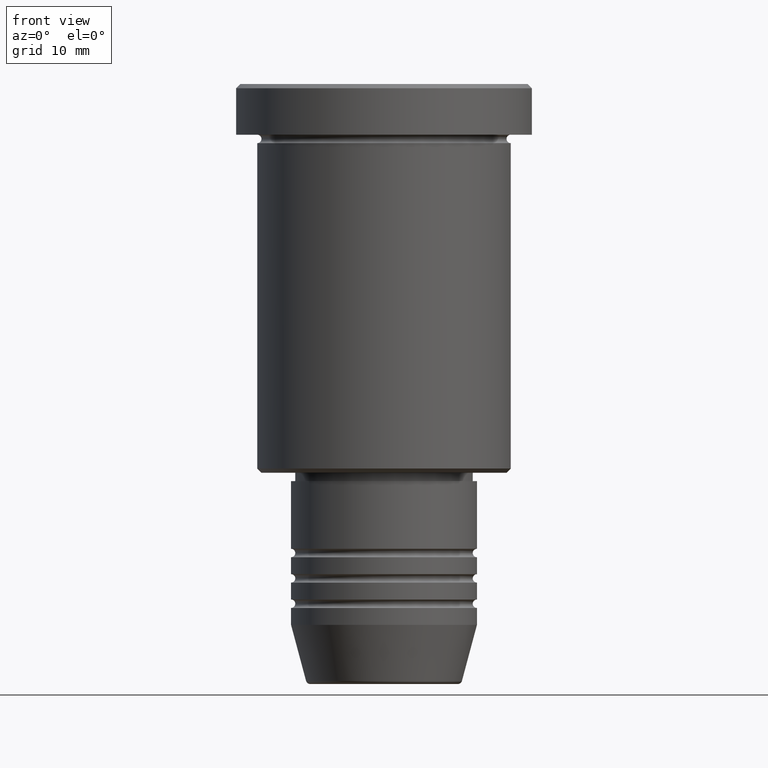
[diagram: clean part render]
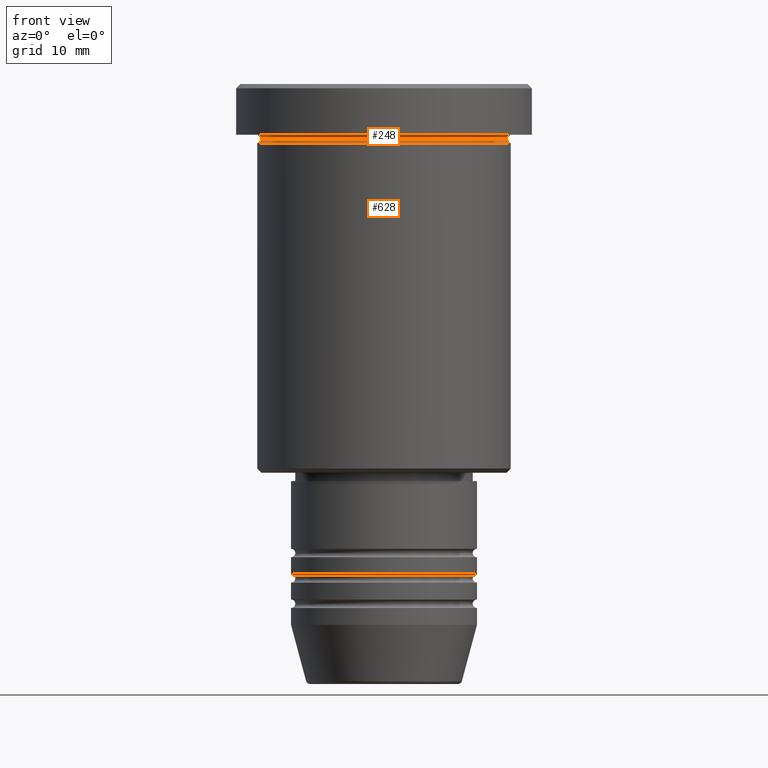
[diagram: same view with one multi-face feature highlighted, each face labeled with its STEP entity id]
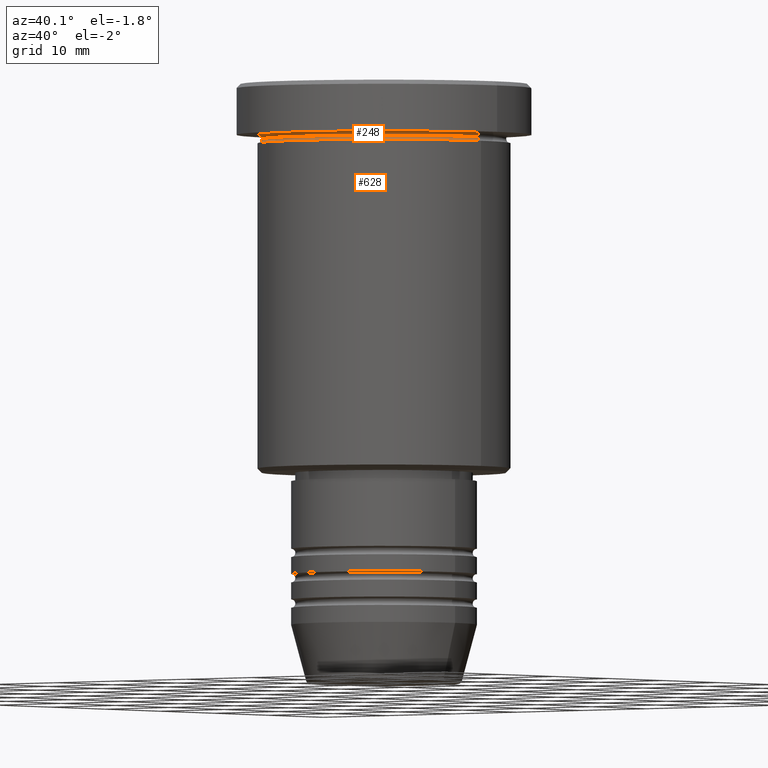
[diagram: same view with one multi-face feature highlighted, each face labeled with its STEP entity id]
A machine part, front view. The highlighted faces form ONE feature: a constant-radius fillet chain: 2 tangent blend faces with common blend radius 0.5 mm. The faces share edges in the B-rep.
A second angle (auxiliary view) of the same feature is appended — it is thin or edge-on in the first view.
Their STEP definitions:
[1] entity #628 (Torus):
#4 = AXIS2_PLACEMENT_3D ( 'NONE', #59, #409, #506 ) ;
#6 = DIRECTION ( 'NONE',  ( 1.000000000000000000, 0.000000000000000000, 0.000000000000000000 ) ) ;
#8 = TOROIDAL_SURFACE ( 'NONE', #548, 15.00000000000000000, 0.5000000000000000000 ) ;
#14 = FACE_OUTER_BOUND ( 'NONE', #1161, .T. ) ;
#59 = CARTESIAN_POINT ( 'NONE',  ( 0.000000000000000000, 0.000000000000000000, -6.999999999999995559 ) ) ;
#115 = CARTESIAN_POINT ( 'NONE',  ( -15.00000000000000000, 1.836970198721029589E-15, -6.999999999999995559 ) ) ;
#140 = DIRECTION ( 'NONE',  ( 1.000000000000000000, 0.000000000000000000, 0.000000000000000000 ) ) ;
#208 = VERTEX_POINT ( 'NONE', #115 ) ;
#250 = DIRECTION ( 'NONE',  ( 0.000000000000000000, 0.000000000000000000, -1.000000000000000000 ) ) ;
#257 = CARTESIAN_POINT ( 'NONE',  ( 15.00000000000000000, 0.000000000000000000, -6.499999999999995559 ) ) ;
#273 = CIRCLE ( 'NONE', #4, 15.00000000000000000 ) ;
#299 = VERTEX_POINT ( 'NONE', #317 ) ;
#312 = EDGE_CURVE ( 'NONE', #851, #208, #505, .T. ) ;
#317 = CARTESIAN_POINT ( 'NONE',  ( 14.49999999999999822, 0.000000000000000000, -6.499999999999995559 ) ) ;
#323 = DIRECTION ( 'NONE',  ( -1.000000000000000000, 1.224646799147349509E-16, 0.000000000000000000 ) ) ;
#363 = EDGE_CURVE ( 'NONE', #208, #890, #273, .T. ) ;
#409 = DIRECTION ( 'NONE',  ( -0.000000000000000000, -0.000000000000000000, 1.000000000000000000 ) ) ;
#414 = ORIENTED_EDGE ( 'NONE', *, *, #429, .F. ) ;
#429 = EDGE_CURVE ( 'NONE', #299, #890, #826, .T. ) ;
#505 = CIRCLE ( 'NONE', #528, 0.5000000000000004441 ) ;
#506 = DIRECTION ( 'NONE',  ( 1.000000000000000000, 0.000000000000000000, 0.000000000000000000 ) ) ;
#521 = CARTESIAN_POINT ( 'NONE',  ( 0.000000000000000000, 0.000000000000000000, -6.499999999999995559 ) ) ;
#528 = AXIS2_PLACEMENT_3D ( 'NONE', #889, #1143, #323 ) ;
#548 = AXIS2_PLACEMENT_3D ( 'NONE', #658, #935, #6 ) ;
#598 = CARTESIAN_POINT ( 'NONE',  ( -14.49999999999999822, 1.806354028742345802E-15, -6.499999999999995559 ) ) ;
#609 = ORIENTED_EDGE ( 'NONE', *, *, #363, .T. ) ;
#625 = AXIS2_PLACEMENT_3D ( 'NONE', #257, #901, #250 ) ;
#628 = ADVANCED_FACE ( 'NONE', ( #14 ), #8, .F. ) ;
#658 = CARTESIAN_POINT ( 'NONE',  ( 0.000000000000000000, 0.000000000000000000, -6.499999999999995559 ) ) ;
#808 = CARTESIAN_POINT ( 'NONE',  ( 15.00000000000000000, 0.000000000000000000, -6.999999999999995559 ) ) ;
#826 = CIRCLE ( 'NONE', #625, 0.5000000000000004441 ) ;
#851 = VERTEX_POINT ( 'NONE', #598 ) ;
#855 = ORIENTED_EDGE ( 'NONE', *, *, #857, .F. ) ;
#857 = EDGE_CURVE ( 'NONE', #851, #299, #1073, .T. ) ;
#872 = AXIS2_PLACEMENT_3D ( 'NONE', #521, #959, #140 ) ;
#889 = CARTESIAN_POINT ( 'NONE',  ( -15.00000000000000000, 1.836970198721029589E-15, -6.499999999999995559 ) ) ;
#890 = VERTEX_POINT ( 'NONE', #808 ) ;
#901 = DIRECTION ( 'NONE',  ( 0.000000000000000000, -1.000000000000000000, 0.000000000000000000 ) ) ;
#935 = DIRECTION ( 'NONE',  ( -0.000000000000000000, -0.000000000000000000, 1.000000000000000000 ) ) ;
#959 = DIRECTION ( 'NONE',  ( -0.000000000000000000, -0.000000000000000000, 1.000000000000000000 ) ) ;
#976 = ORIENTED_EDGE ( 'NONE', *, *, #312, .T. ) ;
#1073 = CIRCLE ( 'NONE', #872, 14.49999999999999822 ) ;
#1143 = DIRECTION ( 'NONE',  ( 1.224646799147353207E-16, 1.000000000000000000, 0.000000000000000000 ) ) ;
#1161 = EDGE_LOOP ( 'NONE', ( #855, #976, #609, #414 ) ) ;
[2] entity #248 (Torus):
#38 = EDGE_CURVE ( 'NONE', #299, #107, #159, .T. ) ;
#49 = AXIS2_PLACEMENT_3D ( 'NONE', #402, #1035, #1150 ) ;
#104 = DIRECTION ( 'NONE',  ( -0.000000000000000000, -1.000000000000000000, -0.000000000000000000 ) ) ;
#107 = VERTEX_POINT ( 'NONE', #1075 ) ;
#119 = ORIENTED_EDGE ( 'NONE', *, *, #857, .T. ) ;
#140 = DIRECTION ( 'NONE',  ( 1.000000000000000000, 0.000000000000000000, 0.000000000000000000 ) ) ;
#142 = CARTESIAN_POINT ( 'NONE',  ( 15.00000000000000000, 1.836970198721029589E-15, -6.499999999999995559 ) ) ;
#159 = CIRCLE ( 'NONE', #545, 0.5000000000000004441 ) ;
#237 = CIRCLE ( 'NONE', #49, 15.00000000000000000 ) ;
#248 = ADVANCED_FACE ( 'NONE', ( #560 ), #965, .F. ) ;
#259 = ORIENTED_EDGE ( 'NONE', *, *, #38, .T. ) ;
#297 = ORIENTED_EDGE ( 'NONE', *, *, #558, .F. ) ;
#299 = VERTEX_POINT ( 'NONE', #317 ) ;
#317 = CARTESIAN_POINT ( 'NONE',  ( 14.49999999999999822, 0.000000000000000000, -6.499999999999995559 ) ) ;
#391 = EDGE_CURVE ( 'NONE', #1131, #107, #237, .T. ) ;
#395 = DIRECTION ( 'NONE',  ( -1.000000000000000000, 0.000000000000000000, 0.000000000000000000 ) ) ;
#402 = CARTESIAN_POINT ( 'NONE',  ( 0.000000000000000000, 0.000000000000000000, -5.999999999999995559 ) ) ;
#445 = AXIS2_PLACEMENT_3D ( 'NONE', #473, #581, #395 ) ;
#464 = DIRECTION ( 'NONE',  ( 0.000000000000000000, 0.000000000000000000, -1.000000000000000000 ) ) ;
#473 = CARTESIAN_POINT ( 'NONE',  ( 0.000000000000000000, 0.000000000000000000, -6.499999999999995559 ) ) ;
#493 = ORIENTED_EDGE ( 'NONE', *, *, #391, .F. ) ;
#521 = CARTESIAN_POINT ( 'NONE',  ( 0.000000000000000000, 0.000000000000000000, -6.499999999999995559 ) ) ;
#545 = AXIS2_PLACEMENT_3D ( 'NONE', #142, #867, #600 ) ;
#558 = EDGE_CURVE ( 'NONE', #851, #1131, #681, .T. ) ;
#560 = FACE_OUTER_BOUND ( 'NONE', #696, .T. ) ;
#565 = AXIS2_PLACEMENT_3D ( 'NONE', #1022, #104, #464 ) ;
#581 = DIRECTION ( 'NONE',  ( 0.000000000000000000, 0.000000000000000000, -1.000000000000000000 ) ) ;
#598 = CARTESIAN_POINT ( 'NONE',  ( -14.49999999999999822, 1.806354028742345802E-15, -6.499999999999995559 ) ) ;
#600 = DIRECTION ( 'NONE',  ( -1.000000000000000000, -1.224646799147349509E-16, 0.000000000000000000 ) ) ;
#681 = CIRCLE ( 'NONE', #565, 0.5000000000000004441 ) ;
#696 = EDGE_LOOP ( 'NONE', ( #119, #259, #493, #297 ) ) ;
#851 = VERTEX_POINT ( 'NONE', #598 ) ;
#857 = EDGE_CURVE ( 'NONE', #851, #299, #1073, .T. ) ;
#867 = DIRECTION ( 'NONE',  ( -1.224646799147353207E-16, 1.000000000000000000, 0.000000000000000000 ) ) ;
#872 = AXIS2_PLACEMENT_3D ( 'NONE', #521, #959, #140 ) ;
#933 = CARTESIAN_POINT ( 'NONE',  ( -15.00000000000000000, 0.000000000000000000, -5.999999999999994671 ) ) ;
#959 = DIRECTION ( 'NONE',  ( -0.000000000000000000, -0.000000000000000000, 1.000000000000000000 ) ) ;
#965 = TOROIDAL_SURFACE ( 'NONE', #445, 15.00000000000000000, 0.5000000000000000000 ) ;
#1022 = CARTESIAN_POINT ( 'NONE',  ( -15.00000000000000000, 0.000000000000000000, -6.499999999999995559 ) ) ;
#1035 = DIRECTION ( 'NONE',  ( -0.000000000000000000, -0.000000000000000000, 1.000000000000000000 ) ) ;
#1073 = CIRCLE ( 'NONE', #872, 14.49999999999999822 ) ;
#1075 = CARTESIAN_POINT ( 'NONE',  ( 15.00000000000000000, 1.836970198721029589E-15, -5.999999999999994671 ) ) ;
#1131 = VERTEX_POINT ( 'NONE', #933 ) ;
#1150 = DIRECTION ( 'NONE',  ( -1.000000000000000000, 0.000000000000000000, 0.000000000000000000 ) ) ;